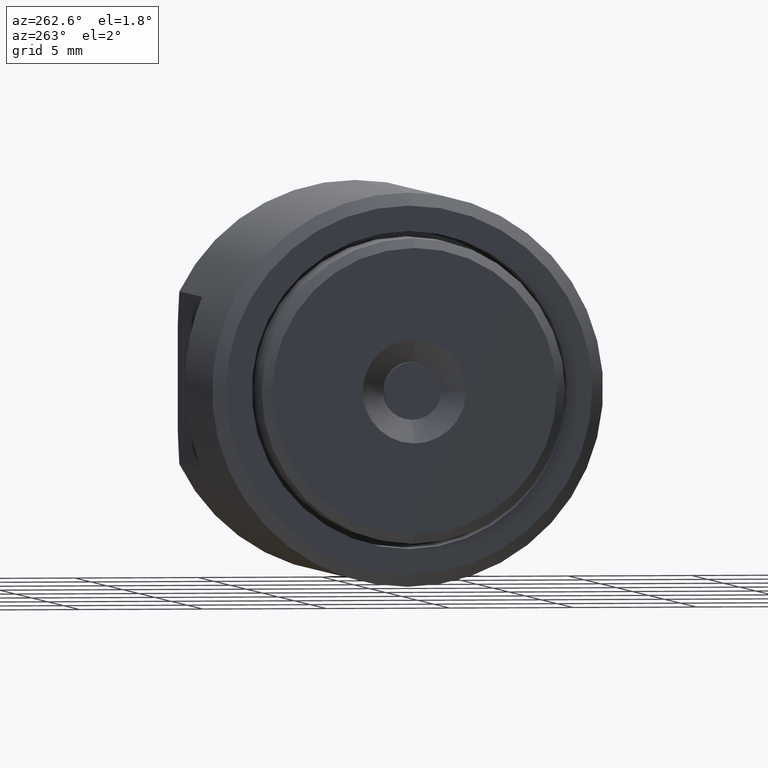
[diagram: clean part render]
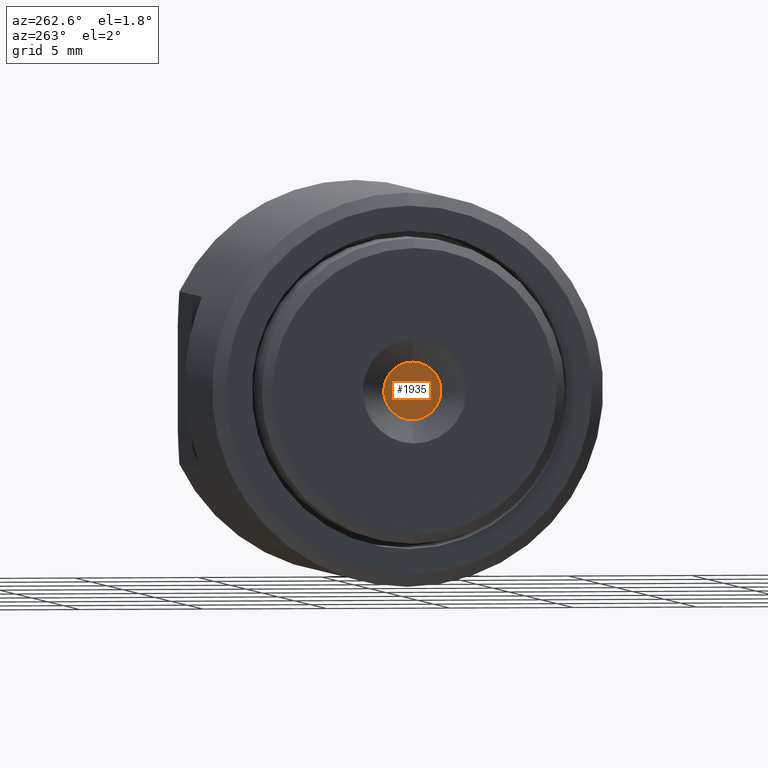
[diagram: same view with one face highlighted and labeled with its STEP entity id]
A machine part, auxiliary view. The second image highlights one B-rep face of the part: STEP entity #1935.
In plain terms, the highlighted planar face has unit normal (1, 0, 0).
Its self-contained STEP definition (entity closure, byte-faithful):
#22 = CIRCLE ( 'NONE', #7108, 0.04558246407405781159 ) ;
#155 = VERTEX_POINT ( 'NONE', #8570 ) ;
#338 = DIRECTION ( 'NONE',  ( -1.000000000000000000, -0.0000000000000000000, -0.0000000000000000000 ) ) ;
#492 = CARTESIAN_POINT ( 'NONE',  ( -0.1309999999999999776, 0.0000000000000000000, 0.0000000000000000000 ) ) ;
#1935 = ADVANCED_FACE ( 'NONE', ( #6702 ), #7367, .F. ) ;
#2542 = DIRECTION ( 'NONE',  ( 0.0000000000000000000, 0.0000000000000000000, -1.000000000000000000 ) ) ;
#3314 = CARTESIAN_POINT ( 'NONE',  ( -0.1309999999999999776, 0.0000000000000000000, 0.04558246407405781159 ) ) ;
#4301 = DIRECTION ( 'NONE',  ( -1.000000000000000000, -0.0000000000000000000, -0.0000000000000000000 ) ) ;
#5243 = DIRECTION ( 'NONE',  ( 0.0000000000000000000, 0.0000000000000000000, 1.000000000000000000 ) ) ;
#5819 = AXIS2_PLACEMENT_3D ( 'NONE', #9168, #338, #10003 ) ;
#6136 = EDGE_CURVE ( 'NONE', #155, #12542, #10096, .T. ) ;
#6187 = AXIS2_PLACEMENT_3D ( 'NONE', #11133, #11260, #2542 ) ;
#6492 = EDGE_LOOP ( 'NONE', ( #9499, #6510 ) ) ;
#6510 = ORIENTED_EDGE ( 'NONE', *, *, #6136, .T. ) ;
#6702 = FACE_OUTER_BOUND ( 'NONE', #6492, .T. ) ;
#7108 = AXIS2_PLACEMENT_3D ( 'NONE', #492, #4301, #5243 ) ;
#7367 = PLANE ( 'NONE',  #6187 ) ;
#8142 = EDGE_CURVE ( 'NONE', #12542, #155, #22, .T. ) ;
#8570 = CARTESIAN_POINT ( 'NONE',  ( -0.1309999999999999776, 5.582241872554412184E-18, -0.04558246407405781159 ) ) ;
#9168 = CARTESIAN_POINT ( 'NONE',  ( -0.1309999999999999776, 0.0000000000000000000, 0.0000000000000000000 ) ) ;
#9499 = ORIENTED_EDGE ( 'NONE', *, *, #8142, .T. ) ;
#10003 = DIRECTION ( 'NONE',  ( 0.0000000000000000000, 0.0000000000000000000, 1.000000000000000000 ) ) ;
#10096 = CIRCLE ( 'NONE', #5819, 0.04558246407405781159 ) ;
#11133 = CARTESIAN_POINT ( 'NONE',  ( -0.1309999999999999776, 0.04558246407405781159, 0.0000000000000000000 ) ) ;
#11260 = DIRECTION ( 'NONE',  ( 1.000000000000000000, 0.0000000000000000000, 0.0000000000000000000 ) ) ;
#12542 = VERTEX_POINT ( 'NONE', #3314 ) ;